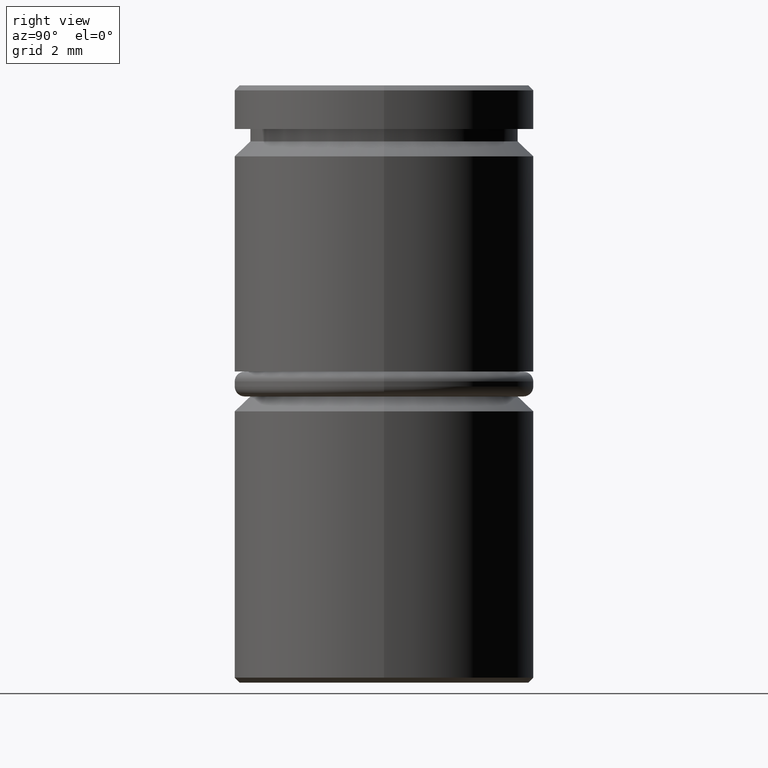
[diagram: clean part render]
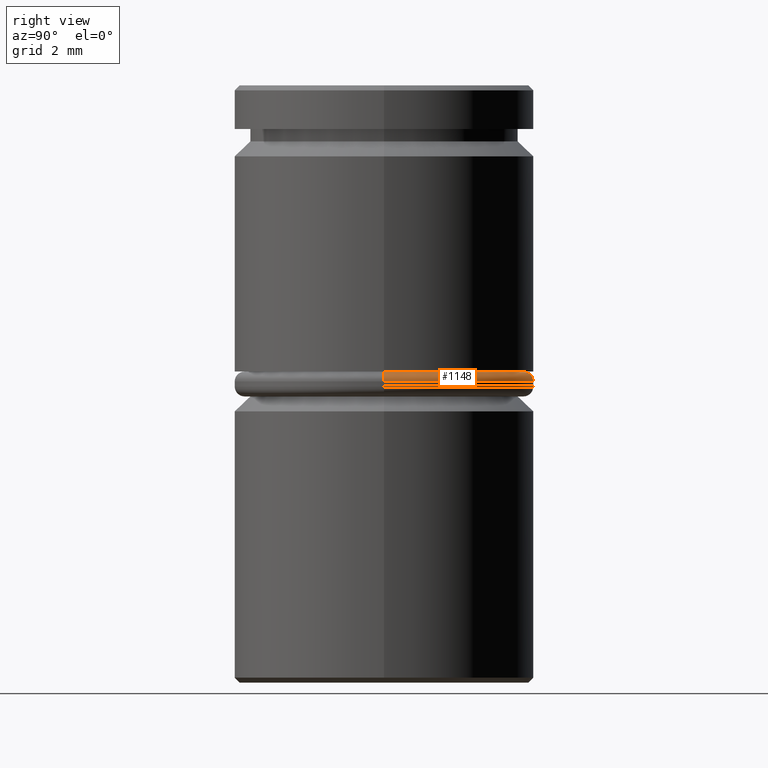
[diagram: same view with one face highlighted and labeled with its STEP entity id]
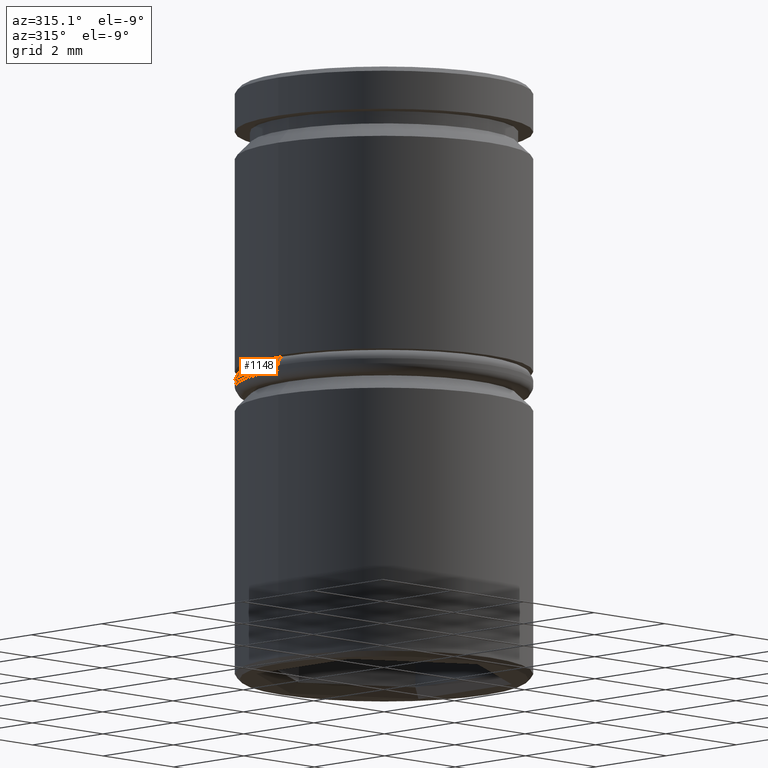
[diagram: same view with one face highlighted and labeled with its STEP entity id]
A machine part, right view. The second image highlights one B-rep face of the part: STEP entity #1148.
A second angle (auxiliary view) of the same face is appended — the face is thin or edge-on in the first view.
In plain terms, the highlighted toroidal blend (fillet) surface has major radius 2.8 mm and minor (blend) radius 0.2 mm.
Its self-contained STEP definition (entity closure, byte-faithful):
#66 = CARTESIAN_POINT ( 'NONE',  ( 2.800000000000000266, 3.429011037612589276E-16, -5.949999999999998401 ) ) ;
#69 = AXIS2_PLACEMENT_3D ( 'NONE', #959, #133, #771 ) ;
#121 = AXIS2_PLACEMENT_3D ( 'NONE', #349, #902, #709 ) ;
#133 = DIRECTION ( 'NONE',  ( 0.000000000000000000, 0.000000000000000000, -1.000000000000000000 ) ) ;
#151 = ORIENTED_EDGE ( 'NONE', *, *, #842, .F. ) ;
#186 = EDGE_CURVE ( 'NONE', #961, #639, #661, .T. ) ;
#198 = EDGE_CURVE ( 'NONE', #1143, #639, #546, .T. ) ;
#303 = FACE_OUTER_BOUND ( 'NONE', #937, .T. ) ;
#330 = AXIS2_PLACEMENT_3D ( 'NONE', #366, #1071, #734 ) ;
#349 = CARTESIAN_POINT ( 'NONE',  ( -2.800000000000000266, 0.000000000000000000, -5.949999999999998401 ) ) ;
#366 = CARTESIAN_POINT ( 'NONE',  ( 0.000000000000000000, 0.000000000000000000, -5.949999999999998401 ) ) ;
#378 = EDGE_CURVE ( 'NONE', #961, #943, #852, .T. ) ;
#465 = CARTESIAN_POINT ( 'NONE',  ( 2.800000000000000266, 3.551475717527324325E-16, -5.750000000000000000 ) ) ;
#526 = AXIS2_PLACEMENT_3D ( 'NONE', #66, #1102, #653 ) ;
#529 = DIRECTION ( 'NONE',  ( -0.000000000000000000, -0.000000000000000000, 1.000000000000000000 ) ) ;
#546 = CIRCLE ( 'NONE', #330, 3.000000000000000444 ) ;
#620 = CARTESIAN_POINT ( 'NONE',  ( 0.000000000000000000, 0.000000000000000000, -5.750000000000000000 ) ) ;
#639 = VERTEX_POINT ( 'NONE', #1035 ) ;
#653 = DIRECTION ( 'NONE',  ( -1.000000000000000000, -1.224646799147353207E-16, 0.000000000000000000 ) ) ;
#661 = CIRCLE ( 'NONE', #526, 0.2000000000000000944 ) ;
#684 = CIRCLE ( 'NONE', #121, 0.1999999999999996503 ) ;
#709 = DIRECTION ( 'NONE',  ( 0.000000000000000000, 0.000000000000000000, -1.000000000000000000 ) ) ;
#734 = DIRECTION ( 'NONE',  ( -1.000000000000000000, 0.000000000000000000, 0.000000000000000000 ) ) ;
#771 = DIRECTION ( 'NONE',  ( -1.000000000000000000, 0.000000000000000000, 0.000000000000000000 ) ) ;
#842 = EDGE_CURVE ( 'NONE', #943, #1143, #684, .T. ) ;
#852 = CIRCLE ( 'NONE', #1078, 2.800000000000000266 ) ;
#883 = DIRECTION ( 'NONE',  ( -1.000000000000000000, 0.000000000000000000, 0.000000000000000000 ) ) ;
#902 = DIRECTION ( 'NONE',  ( -0.000000000000000000, -1.000000000000000000, -0.000000000000000000 ) ) ;
#917 = CARTESIAN_POINT ( 'NONE',  ( -2.800000000000000266, 0.000000000000000000, -5.750000000000000000 ) ) ;
#937 = EDGE_LOOP ( 'NONE', ( #1113, #1034, #1136, #151 ) ) ;
#943 = VERTEX_POINT ( 'NONE', #917 ) ;
#959 = CARTESIAN_POINT ( 'NONE',  ( 0.000000000000000000, 0.000000000000000000, -5.949999999999998401 ) ) ;
#961 = VERTEX_POINT ( 'NONE', #465 ) ;
#1034 = ORIENTED_EDGE ( 'NONE', *, *, #186, .T. ) ;
#1035 = CARTESIAN_POINT ( 'NONE',  ( 3.000000000000000444, 0.000000000000000000, -5.949999999999998401 ) ) ;
#1071 = DIRECTION ( 'NONE',  ( 0.000000000000000000, 0.000000000000000000, -1.000000000000000000 ) ) ;
#1078 = AXIS2_PLACEMENT_3D ( 'NONE', #620, #529, #883 ) ;
#1098 = TOROIDAL_SURFACE ( 'NONE', #69, 2.800000000000000266, 0.2000000000000000111 ) ;
#1102 = DIRECTION ( 'NONE',  ( -1.224646799147353207E-16, 1.000000000000000000, 0.000000000000000000 ) ) ;
#1113 = ORIENTED_EDGE ( 'NONE', *, *, #378, .F. ) ;
#1120 = CARTESIAN_POINT ( 'NONE',  ( -3.000000000000000444, 3.673940397442060361E-16, -5.949999999999998401 ) ) ;
#1136 = ORIENTED_EDGE ( 'NONE', *, *, #198, .F. ) ;
#1143 = VERTEX_POINT ( 'NONE', #1120 ) ;
#1148 = ADVANCED_FACE ( 'NONE', ( #303 ), #1098, .T. ) ;